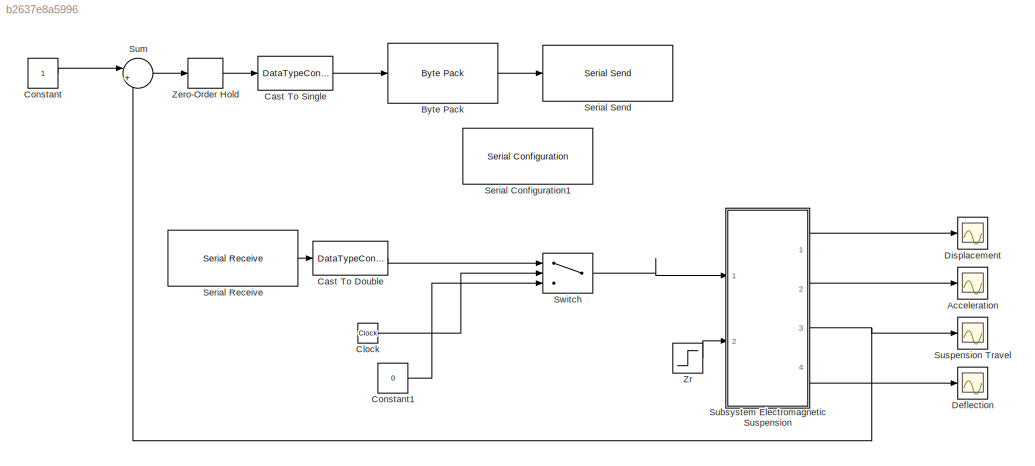
MODEL slx_b2637e8a5996
KIND model
CONFIG AbsTol = auto
CONFIG EnableMultiTasking = off
CONFIG FixedStep = auto
CONFIG MaxStep = auto
CONFIG MinStep = auto
CONFIG RelTol = 1e-3
CONFIG SampleTimeConstraint = Unconstrained
CONFIG SolverName = VariableStepAuto
CONFIG StartTime = 0.0
CONFIG StopTime = 10.0
BLOCK [Scope] Acceleration
  Floating = off
  NumInputPorts = 1
  Ports = [1]
  ScopeSpecificationString = Simulink.scopes.TimeScopeBlockCfg('CurrentConfiguration', extmgr.ConfigurationSet(extmgr.Configuration('Core','General UI',true),extmgr.Configuration('Core','Source UI',true),extmgr.Configuration('Sources','WiredSimulink',true,'DataLoggingVariableName','ScopeData1'),extmgr.Configuration('Visuals','Time Domain',true,'SerializedDisplays',{struct('MinYLimReal','-815.37681','MaxYLimReal','839.22541','...<+1996ch>
BLOCK [Reference] Byte Pack  REF=etargetslib/Byte Pack
  Ports = [1, 1]
  SourceBlock = etargetslib/Byte Pack
  SourceProductBaseCode = ME
  SourceType = Byte pack
BLOCK [DataTypeConversion] Cast To Double
  OutDataTypeStr = double
  RndMeth = Floor
  SaturateOnIntegerOverflow = off
BLOCK [DataTypeConversion] Cast To Single
  OutDataTypeStr = single
  RndMeth = Floor
  SaturateOnIntegerOverflow = off
BLOCK [Clock] Clock
  Decimation = 5
BLOCK [Constant] Constant
BLOCK [Constant] Constant1
  Value = 0
BLOCK [Scope] Deflection
  Floating = off
  NumInputPorts = 1
  Ports = [1]
  ScopeSpecificationString = Simulink.scopes.TimeScopeBlockCfg('CurrentConfiguration', extmgr.ConfigurationSet(extmgr.Configuration('Core','General UI',true),extmgr.Configuration('Core','Source UI',true),extmgr.Configuration('Sources','WiredSimulink',true,'DataLoggingVariableName','ScopeData2'),extmgr.Configuration('Visuals','Time Domain',true,'SerializedDisplays',{struct('MinYLimReal','-0.00000008','MaxYLimReal','0.00000071'...<+1647ch>
BLOCK [Scope] Displacement
  Floating = off
  NumInputPorts = 1
  Ports = [1]
  ScopeSpecificationString = Simulink.scopes.TimeScopeBlockCfg('CurrentConfiguration', extmgr.ConfigurationSet(extmgr.Configuration('Core','General UI',true),extmgr.Configuration('Core','Source UI',true),extmgr.Configuration('Sources','WiredSimulink',true),extmgr.Configuration('Visuals','Time Domain',true,'SerializedDisplays',{struct('MinYLimReal','-0.0027','MaxYLimReal','0.02432','YLabelReal','','MinYLimMag','0.00000','MaxYL...<+1609ch>
BLOCK [Reference] Serial Configuration1  REF=instrumentseriallib/Serial Configuration
  Ports = []
  Priority = -200000
  SourceBlock = instrumentseriallib/Serial Configuration
  SourceProductBaseCode = IC
  SourceType = matlabshared.seriallib.internal.system.SerialConfiguration
BLOCK [Reference] Serial Receive  REF=instrumentseriallib/Serial Receive
  Ports = [0, 1]
  SourceBlock = instrumentseriallib/Serial Receive
  SourceProductBaseCode = IC
  SourceType = matlabshared.seriallib.internal.system.SerialReceive
BLOCK [Reference] Serial Send  REF=instrumentseriallib/Serial Send
  Ports = [1]
  SourceBlock = instrumentseriallib/Serial Send
  SourceProductBaseCode = IC
  SourceType = matlabshared.seriallib.internal.system.SerialSend
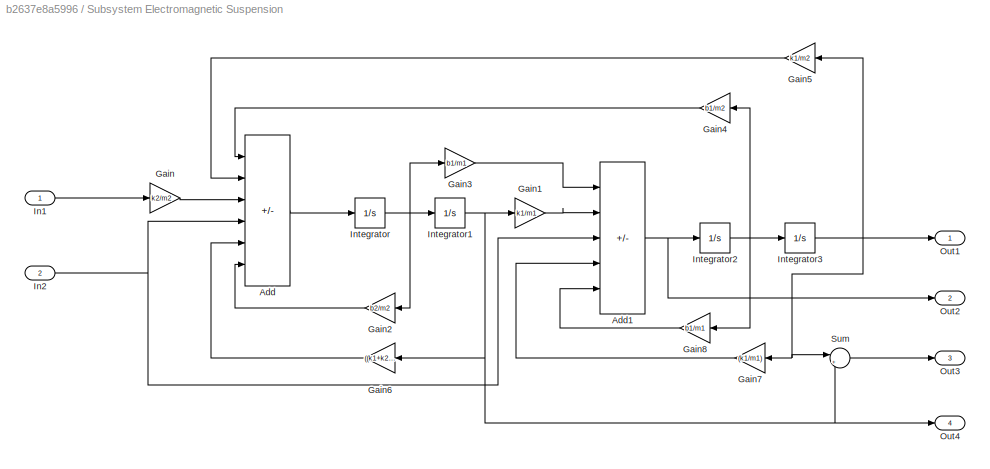
BLOCK [SubSystem] Subsystem Electromagnetic Suspension
  Ports = [2, 4]
  RequestExecContextInheritance = off
BLOCK [Sum] Subsystem Electromagnetic Suspension/Add
  IconShape = rectangular
  Inputs = +++---
  Ports = [6, 1]
BLOCK [Sum] Subsystem Electromagnetic Suspension/Add1
  IconShape = rectangular
  Inputs = +++--
  Ports = [5, 1]
BLOCK [Gain] Subsystem Electromagnetic Suspension/Gain
  Gain = k2/m2
BLOCK [Gain] Subsystem Electromagnetic Suspension/Gain1
  Gain = k1/m1
BLOCK [Gain] Subsystem Electromagnetic Suspension/Gain2
  Gain = b2/m2
  NameLocation = top
BLOCK [Gain] Subsystem Electromagnetic Suspension/Gain3
  Gain = b1/m1
BLOCK [Gain] Subsystem Electromagnetic Suspension/Gain4
  Gain = b1/m2
  NameLocation = top
BLOCK [Gain] Subsystem Electromagnetic Suspension/Gain5
  Gain = k1/m2
  NameLocation = top
BLOCK [Gain] Subsystem Electromagnetic Suspension/Gain6
  Gain = ((k1+k2)/m2)
  NameLocation = top
BLOCK [Gain] Subsystem Electromagnetic Suspension/Gain7
  Gain = (k1/m1)
  NameLocation = top
BLOCK [Gain] Subsystem Electromagnetic Suspension/Gain8
  Gain = b1/m1
  NameLocation = top
BLOCK [Inport] Subsystem Electromagnetic Suspension/In1
BLOCK [Inport] Subsystem Electromagnetic Suspension/In2
  Port = 2
BLOCK [Integrator] Subsystem Electromagnetic Suspension/Integrator
  LimitOutput = on
  LowerSaturationLimit = 0
  Ports = [1, 1]
  UpperSaturationLimit = 10
BLOCK [Integrator] Subsystem Electromagnetic Suspension/Integrator1
  Ports = [1, 1]
BLOCK [Integrator] Subsystem Electromagnetic Suspension/Integrator2
  Ports = [1, 1]
BLOCK [Integrator] Subsystem Electromagnetic Suspension/Integrator3
  Ports = [1, 1]
BLOCK [Outport] Subsystem Electromagnetic Suspension/Out1
BLOCK [Outport] Subsystem Electromagnetic Suspension/Out2
  Port = 2
BLOCK [Outport] Subsystem Electromagnetic Suspension/Out3
  Port = 3
BLOCK [Outport] Subsystem Electromagnetic Suspension/Out4
  Port = 4
BLOCK [Sum] Subsystem Electromagnetic Suspension/Sum
  Inputs = |+-
  Ports = [2, 1]
BLOCK [Sum] Sum
  Inputs = |+-
  Ports = [2, 1]
BLOCK [Scope] Suspension Travel
  Floating = off
  NumInputPorts = 1
  Ports = [1]
  ScopeSpecificationString = Simulink.scopes.TimeScopeBlockCfg('CurrentConfiguration', extmgr.ConfigurationSet(extmgr.Configuration('Core','General UI',true),extmgr.Configuration('Core','Source UI',true),extmgr.Configuration('Sources','WiredSimulink',true,'DataLoggingVariableName','ScopeData3'),extmgr.Configuration('Visuals','Time Domain',true,'SerializedDisplays',{struct('MinYLimReal','-0.0027','MaxYLimReal','0.02432','YLabe...<+1900ch>
BLOCK [Switch] Switch
  Criteria = u2 > Threshold
  InputSameDT = off
  SaturateOnIntegerOverflow = off
  Threshold = 2
BLOCK [ZeroOrderHold] Zero-Order Hold
  SampleTime = 0.05
BLOCK [Step] Zr
  SampleTime = 0
  Time = 0.1
LINE Byte Pack:1 -> Serial Send:1
LINE Cast To Double:1 -> Switch:1
LINE Cast To Single:1 -> Byte Pack:1
LINE Clock:1 -> Switch:2
LINE Constant1:1 -> Switch:3
LINE Constant:1 -> Sum:1
LINE Serial Receive:1 -> Cast To Double:1
NET Subsystem Electromagnetic Suspension/Add1:1 -> Subsystem Electromagnetic Suspension/Integrator2:1, Subsystem Electromagnetic Suspension/Out2:1
LINE Subsystem Electromagnetic Suspension/Add:1 -> Subsystem Electromagnetic Suspension/Integrator:1
LINE Subsystem Electromagnetic Suspension/Gain1:1 -> Subsystem Electromagnetic Suspension/Add1:2
LINE Subsystem Electromagnetic Suspension/Gain2:1 -> Subsystem Electromagnetic Suspension/Add:6
LINE Subsystem Electromagnetic Suspension/Gain3:1 -> Subsystem Electromagnetic Suspension/Add1:1
LINE Subsystem Electromagnetic Suspension/Gain4:1 -> Subsystem Electromagnetic Suspension/Add:1
LINE Subsystem Electromagnetic Suspension/Gain5:1 -> Subsystem Electromagnetic Suspension/Add:2
LINE Subsystem Electromagnetic Suspension/Gain6:1 -> Subsystem Electromagnetic Suspension/Add:5
LINE Subsystem Electromagnetic Suspension/Gain7:1 -> Subsystem Electromagnetic Suspension/Add1:4
LINE Subsystem Electromagnetic Suspension/Gain8:1 -> Subsystem Electromagnetic Suspension/Add1:5
LINE Subsystem Electromagnetic Suspension/Gain:1 -> Subsystem Electromagnetic Suspension/Add:3
LINE Subsystem Electromagnetic Suspension/In1:1 -> Subsystem Electromagnetic Suspension/Gain:1
NET Subsystem Electromagnetic Suspension/In2:1 -> Subsystem Electromagnetic Suspension/Add1:3, Subsystem Electromagnetic Suspension/Add:4
NET Subsystem Electromagnetic Suspension/Integrator1:1 -> Subsystem Electromagnetic Suspension/Gain1:1, Subsystem Electromagnetic Suspension/Gain6:1, Subsystem Electromagnetic Suspension/Out4:1, Subsystem Electromagnetic Suspension/Sum:2
NET Subsystem Electromagnetic Suspension/Integrator2:1 -> Subsystem Electromagnetic Suspension/Gain4:1, Subsystem Electromagnetic Suspension/Gain8:1, Subsystem Electromagnetic Suspension/Integrator3:1
NET Subsystem Electromagnetic Suspension/Integrator3:1 -> Subsystem Electromagnetic Suspension/Gain5:1, Subsystem Electromagnetic Suspension/Gain7:1, Subsystem Electromagnetic Suspension/Out1:1, Subsystem Electromagnetic Suspension/Sum:1
NET Subsystem Electromagnetic Suspension/Integrator:1 -> Subsystem Electromagnetic Suspension/Gain2:1, Subsystem Electromagnetic Suspension/Gain3:1, Subsystem Electromagnetic Suspension/Integrator1:1
LINE Subsystem Electromagnetic Suspension/Sum:1 -> Subsystem Electromagnetic Suspension/Out3:1
LINE Subsystem Electromagnetic Suspension:1 -> Displacement:1
LINE Subsystem Electromagnetic Suspension:2 -> Acceleration:1
NET Subsystem Electromagnetic Suspension:3 -> Sum:2, Suspension Travel:1
LINE Subsystem Electromagnetic Suspension:4 -> Deflection:1
LINE Sum:1 -> Zero-Order Hold:1
LINE Switch:1 -> Subsystem Electromagnetic Suspension:1
LINE Zero-Order Hold:1 -> Cast To Single:1
LINE Zr:1 -> Subsystem Electromagnetic Suspension:2
note: NET lines group one-source signal fan-out (src -> all destinations, sorted); 1:1 wires keep LINE
